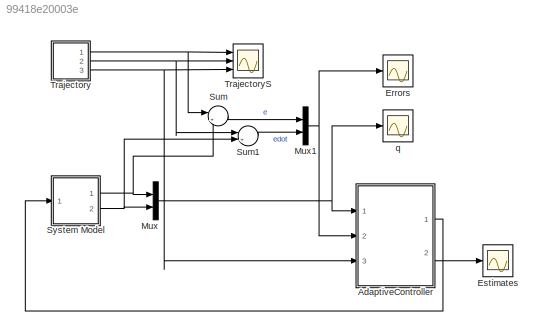
MODEL slx_99418e20003e
KIND model
CONFIG AbsTol = auto
CONFIG EnableMultiTasking = off
CONFIG FixedStep = 0.001
CONFIG MaxStep = auto
CONFIG MinStep = auto
CONFIG RelTol = 1e-3
CONFIG SampleTimeConstraint = Unconstrained
CONFIG Solver = ode1
CONFIG SolverName = ode1
CONFIG StartTime = 0.0
CONFIG StopTime = 20
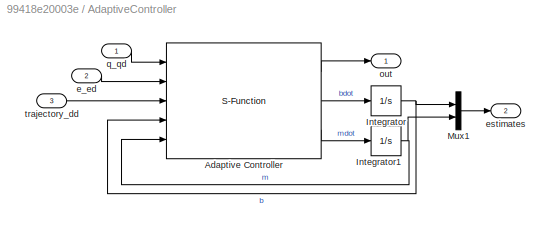
BLOCK [SubSystem] AdaptiveController
  Ports = [3, 2]
  RequestExecContextInheritance = off
BLOCK [S-Function] AdaptiveController/Adaptive Controller
  EnableBusSupport = off
  FunctionName = controller
  Parameters = 1,10,5,3,0,0
  Ports = [5, 3]
  SFcnIsStateOwnerBlock = off
  SFunctionDeploymentMode = off
BLOCK [Integrator] AdaptiveController/Integrator
  Ports = [1, 1]
BLOCK [Integrator] AdaptiveController/Integrator1
  Ports = [1, 1]
BLOCK [Mux] AdaptiveController/Mux1
  DisplayOption = bar
  Inputs = 2
  Ports = [2, 1]
BLOCK [Inport] AdaptiveController/e_ed
  IconDisplay = Port number
  Port = 2
BLOCK [Outport] AdaptiveController/estimates 
  IconDisplay = Port number
  Port = 2
BLOCK [Outport] AdaptiveController/out
  IconDisplay = Port number
BLOCK [Inport] AdaptiveController/q_qd
  IconDisplay = Port number
BLOCK [Inport] AdaptiveController/trajectory_dd
  IconDisplay = Port number
  Port = 3
BLOCK [Scope] Errors
  Floating = off
  NumInputPorts = 1
  Ports = [1]
  ScopeSpecificationString = Simulink.scopes.TimeScopeBlockCfg('CurrentConfiguration', extmgr.ConfigurationSet(extmgr.Configuration('Core','General UI',true),extmgr.Configuration('Core','Source UI',true),extmgr.Configuration('Sources','WiredSimulink',true,'DataLoggingVariableName','ScopeData1'),extmgr.Configuration('Visuals','Time Domain',true,'SerializedDisplays',{struct('MinYLimReal','-5.2972','MaxYLimReal','6.19674','YLabe...<+1391ch>
BLOCK [Scope] Estimates
  Floating = off
  NumInputPorts = 1
  Ports = [1]
  ScopeSpecificationString = Simulink.scopes.TimeScopeBlockCfg('CurrentConfiguration', extmgr.ConfigurationSet(extmgr.Configuration('Core','General UI',true),extmgr.Configuration('Core','Source UI',true),extmgr.Configuration('Sources','WiredSimulink',true,'DataLoggingVariableName','ScopeData1'),extmgr.Configuration('Visuals','Time Domain',true,'SerializedDisplays',{struct('MinYLimReal','-1.15436','MaxYLimReal','4.57918','YLab...<+1432ch>
BLOCK [Mux] Mux
  DisplayOption = bar
  Inputs = 2
  Ports = [2, 1]
BLOCK [Mux] Mux1
  DisplayOption = bar
  Inputs = 2
  Ports = [2, 1]
BLOCK [Sum] Sum
  IconShape = round
  InputSameDT = off
  Inputs = |+-
  OutDataTypeStr = Inherit: Inherit via internal rule
  Ports = [2, 1]
  SaturateOnIntegerOverflow = off
BLOCK [Sum] Sum1
  IconShape = round
  InputSameDT = off
  Inputs = |+-
  OutDataTypeStr = Inherit: Inherit via internal rule
  Ports = [2, 1]
  SaturateOnIntegerOverflow = off
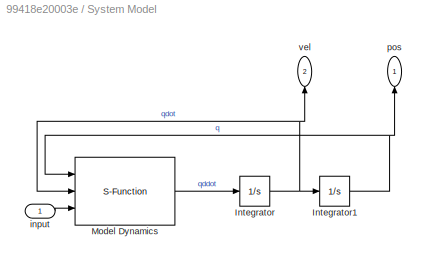
BLOCK [SubSystem] System Model
  Ports = [1, 2]
  RequestExecContextInheritance = off
BLOCK [Integrator] System Model/Integrator
  Ports = [1, 1]
BLOCK [Integrator] System Model/Integrator1
  Ports = [1, 1]
BLOCK [S-Function] System Model/Model Dynamics
  EnableBusSupport = off
  FunctionName = model
  Parameters = 2,1.5
  Ports = [3, 1]
  SFcnIsStateOwnerBlock = off
  SFunctionDeploymentMode = off
BLOCK [Inport] System Model/input
  IconDisplay = Port number
BLOCK [Outport] System Model/pos
  IconDisplay = Port number
BLOCK [Outport] System Model/vel
  IconDisplay = Port number
  Port = 2
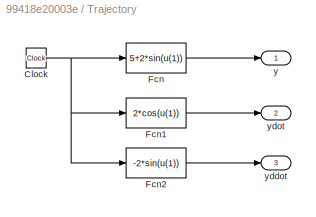
BLOCK [SubSystem] Trajectory
  Ports = [0, 3]
  RequestExecContextInheritance = off
BLOCK [Clock] Trajectory/Clock
  Decimation = 1
BLOCK [Fcn] Trajectory/Fcn
  Expr = 5+2*sin(u(1))
BLOCK [Fcn] Trajectory/Fcn1
  Expr = 2*cos(u(1))
BLOCK [Fcn] Trajectory/Fcn2
  Expr = -2*sin(u(1))
BLOCK [Outport] Trajectory/y
  IconDisplay = Port number
BLOCK [Outport] Trajectory/yddot
  IconDisplay = Port number
  Port = 3
BLOCK [Outport] Trajectory/ydot
  IconDisplay = Port number
  Port = 2
BLOCK [Scope] TrajectoryS
  Floating = off
  NumInputPorts = 3
  Ports = [3]
  ScopeSpecificationString = Simulink.scopes.TimeScopeBlockCfg('CurrentConfiguration', extmgr.ConfigurationSet(extmgr.Configuration('Core','General UI',true),extmgr.Configuration('Core','Source UI',true),extmgr.Configuration('Sources','WiredSimulink',true),extmgr.Configuration('Visuals','Time Domain',true,'SerializedDisplays',{struct('MinYLimReal','-3.125','MaxYLimReal','8.125','YLabelReal','','MinYLimMag','0.00000','MaxYLimM...<+1376ch>
BLOCK [Scope] q
  Floating = off
  NumInputPorts = 1
  Ports = [1]
  ScopeSpecificationString = Simulink.scopes.TimeScopeBlockCfg('CurrentConfiguration', extmgr.ConfigurationSet(extmgr.Configuration('Core','General UI',true),extmgr.Configuration('Core','Source UI',true),extmgr.Configuration('Sources','WiredSimulink',true,'DataLoggingVariableName','ScopeData1'),extmgr.Configuration('Visuals','Time Domain',true,'SerializedDisplays',{struct('MinYLimReal','-3.12203','MaxYLimReal','8.1221','YLabe...<+1415ch>
LINE AdaptiveController/Adaptive Controller:1 -> AdaptiveController/out:1
LINE AdaptiveController/Adaptive Controller:2 -> AdaptiveController/Integrator:1
LINE AdaptiveController/Adaptive Controller:3 -> AdaptiveController/Integrator1:1
NET AdaptiveController/Integrator1:1 -> AdaptiveController/Adaptive Controller:5, AdaptiveController/Mux1:2
NET AdaptiveController/Integrator:1 -> AdaptiveController/Adaptive Controller:4, AdaptiveController/Mux1:1
LINE AdaptiveController/Mux1:1 -> AdaptiveController/estimates :1
LINE AdaptiveController/e_ed:1 -> AdaptiveController/Adaptive Controller:2
LINE AdaptiveController/q_qd:1 -> AdaptiveController/Adaptive Controller:1
LINE AdaptiveController/trajectory_dd:1 -> AdaptiveController/Adaptive Controller:3
LINE AdaptiveController:1 -> System Model:1
LINE AdaptiveController:2 -> Estimates:1
NET Mux1:1 -> AdaptiveController:2, Errors:1
NET Mux:1 -> AdaptiveController:1, q:1
LINE Sum1:1 -> Mux1:2
LINE Sum:1 -> Mux1:1
NET System Model/Integrator1:1 -> System Model/Model Dynamics:1, System Model/pos:1
NET System Model/Integrator:1 -> System Model/Integrator1:1, System Model/Model Dynamics:2, System Model/vel:1
LINE System Model/Model Dynamics:1 -> System Model/Integrator:1
LINE System Model/input:1 -> System Model/Model Dynamics:3
NET System Model:1 -> Mux:1, Sum:2
NET System Model:2 -> Mux:2, Sum1:2
NET Trajectory/Clock:1 -> Trajectory/Fcn1:1, Trajectory/Fcn2:1, Trajectory/Fcn:1
LINE Trajectory/Fcn1:1 -> Trajectory/ydot:1
LINE Trajectory/Fcn2:1 -> Trajectory/yddot:1
LINE Trajectory/Fcn:1 -> Trajectory/y:1
NET Trajectory:1 -> Sum:1, TrajectoryS:1
NET Trajectory:2 -> Sum1:1, TrajectoryS:2
NET Trajectory:3 -> AdaptiveController:3, TrajectoryS:3
note: NET lines group one-source signal fan-out (src -> all destinations, sorted); 1:1 wires keep LINE
